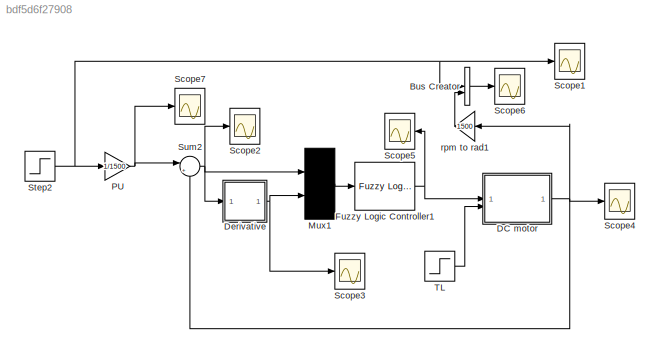
MODEL mdl_bdf5d6f27908
KIND model
CONFIG AbsTol = auto
CONFIG EnableMultiTasking = on
CONFIG FixedStep = auto
CONFIG MaxStep = auto
CONFIG MinStep = auto
CONFIG RelTol = 1e-3
CONFIG SampleTimeConstraint = Unconstrained
CONFIG SolverName = ode45
CONFIG StartTime = 0.0
CONFIG StopTime = 10
BLOCK [BusCreator] Bus Creator
  DisplayOption = bar
  InheritFromInputs = on
  Inputs = 2
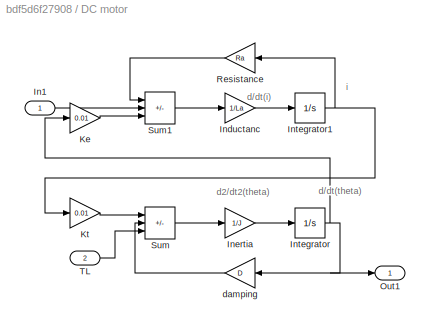
BLOCK [SubSystem] DC motor
BLOCK [Inport] DC motor/In1
BLOCK [Gain] DC motor/Inductanc
  Gain = 1/La
  OutDataTypeStr = Inherit: Same as input
  ParamDataTypeStr = Inherit: Same as input
  SaturateOnIntegerOverflow = on
BLOCK [Gain] DC motor/Inertia
  Gain = 1/J
  OutDataTypeStr = Inherit: Same as input
  ParamDataTypeStr = Inherit: Same as input
  SaturateOnIntegerOverflow = on
BLOCK [Integrator] DC motor/Integrator
BLOCK [Integrator] DC motor/Integrator1
BLOCK [Gain] DC motor/Ke
  Gain = 0.01
  OutDataTypeStr = Inherit: Same as input
  ParamDataTypeStr = Inherit: Same as input
  SaturateOnIntegerOverflow = on
BLOCK [Gain] DC motor/Kt
  Gain = 0.01
  OutDataTypeStr = Inherit: Same as input
  ParamDataTypeStr = Inherit: Same as input
  SaturateOnIntegerOverflow = on
BLOCK [Outport] DC motor/Out1
BLOCK [Gain] DC motor/Resistance
  Gain = Ra
  OutDataTypeStr = Inherit: Same as input
  ParamDataTypeStr = Inherit: Same as input
  SaturateOnIntegerOverflow = on
BLOCK [Sum] DC motor/Sum
  IconShape = rectangular
  InputSameDT = on
  Inputs = +--
  OutDataTypeStr = Inherit: Same as first input
  SaturateOnIntegerOverflow = on
BLOCK [Sum] DC motor/Sum1
  IconShape = rectangular
  InputSameDT = on
  Inputs = -+-
  OutDataTypeStr = Inherit: Same as first input
  SaturateOnIntegerOverflow = on
BLOCK [Inport] DC motor/TL
  Port = 2
BLOCK [Gain] DC motor/damping
  Gain = D
  OutDataTypeStr = Inherit: Same as input
  ParamDataTypeStr = Inherit: Same as input
  SaturateOnIntegerOverflow = on
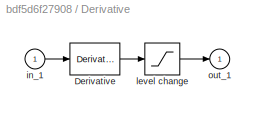
BLOCK [SubSystem] Derivative
  ShowPortLabels = none
BLOCK [Derivative] Derivative/Derivative
BLOCK [Inport] Derivative/in_1
BLOCK [Saturate] Derivative/level change
  LowerLimit = -2
  UpperLimit = 2
BLOCK [Outport] Derivative/out_1
BLOCK [Reference] Fuzzy Logic Controller1  REF=fuzblock/Fuzzy Logic   (lib defined in mdl_858b3b3e7478)
Controller
  SourceBlock = fuzblock/Fuzzy Logic \nController
  SourceType = Fuzzy Inference System
BLOCK [Mux] Mux1
  Inputs = 2
BLOCK [Gain] PU
  Gain = 1/1500
  NameLocation = top
BLOCK [Scope] Scope1
  Floating = off
  NumInputPorts = 1
  ScopeSpecificationString = C++SS(StrPVP('Location','[5, 86, 1285, 757]'),StrPVP('Open','off'),MxPVP('AxesTitles',54,'struct(''axes1'',''%<SignalLabel>'')'),StrPVP('YMin','0'),StrPVP('YMax','1750'),StrPVP('DataFormat','StructureWithTime'),StrPVP('LimitDataPoints','off'),StrPVP('BlockParamSampleTime','0'),StrPVP('Decimation','1'),StrPVP('BlockParamSampleInput','off'))
BLOCK [Scope] Scope2
  Floating = off
  NumInputPorts = 1
  ScopeSpecificationString = C++SS(StrPVP('Location','[5, 86, 1285, 757]'),StrPVP('Open','off'),MxPVP('AxesTitles',54,'struct(''axes1'',''%<SignalLabel>'')'),StrPVP('YMin','0'),StrPVP('YMax','1750'),StrPVP('SaveName','ScopeData1'),StrPVP('DataFormat','StructureWithTime'),StrPVP('LimitDataPoints','off'),StrPVP('BlockParamSampleTime','0'),StrPVP('Decimation','1'),StrPVP('BlockParamSampleInput','off'))
BLOCK [Scope] Scope3
  Floating = off
  NumInputPorts = 1
  ScopeSpecificationString = C++SS(StrPVP('Location','[5, 86, 1285, 757]'),StrPVP('Open','off'),MxPVP('AxesTitles',54,'struct(''axes1'',''%<SignalLabel>'')'),StrPVP('YMin','0'),StrPVP('YMax','1750'),StrPVP('SaveName','ScopeData2'),StrPVP('DataFormat','StructureWithTime'),StrPVP('LimitDataPoints','off'),StrPVP('BlockParamSampleTime','0'),StrPVP('Decimation','1'),StrPVP('BlockParamSampleInput','off'))
BLOCK [Scope] Scope4
  Floating = off
  NumInputPorts = 1
  ScopeSpecificationString = C++SS(StrPVP('Location','[5, 86, 1285, 757]'),StrPVP('Open','off'),MxPVP('AxesTitles',54,'struct(''axes1'',''%<SignalLabel>'')'),StrPVP('YMin','0'),StrPVP('YMax','1750'),StrPVP('SaveName','ScopeData3'),StrPVP('DataFormat','StructureWithTime'),StrPVP('LimitDataPoints','off'),StrPVP('BlockParamSampleTime','0'),StrPVP('Decimation','1'),StrPVP('BlockParamSampleInput','off'))
BLOCK [Scope] Scope5
  Floating = off
  NameLocation = top
  NumInputPorts = 1
  ScopeSpecificationString = C++SS(StrPVP('Location','[5, 43, 1285, 714]'),StrPVP('Open','off'),MxPVP('AxesTitles',54,'struct(''axes1'',''%<SignalLabel>'')'),StrPVP('YMin','0'),StrPVP('YMax','1750'),StrPVP('SaveName','ScopeData4'),StrPVP('DataFormat','StructureWithTime'),StrPVP('LimitDataPoints','off'),StrPVP('BlockParamSampleTime','0'),StrPVP('Decimation','1'),StrPVP('BlockParamSampleInput','off'))
BLOCK [Scope] Scope6
  Floating = off
  NumInputPorts = 1
  ScopeSpecificationString = Simulink.scopes.TimeScopeBlockCfg('CurrentConfiguration', extmgr.ConfigurationSet(extmgr.Configuration('Core','General UI',true),extmgr.Configuration('Core','Source UI',true),extmgr.Configuration('Sources','WiredSimulink',true,'DataLoggingVariableName','ScopeData5','DataLoggingSaveFormat','StructureWithTime','DataLoggingDecimation','1','DataLoggingDecimateData',true),extmgr.Configuration('Visuals'...<+1662ch>
BLOCK [Scope] Scope7
  Floating = off
  NumInputPorts = 1
  ScopeSpecificationString = C++SS(StrPVP('Location','[5, 86, 1285, 757]'),StrPVP('Open','off'),MxPVP('AxesTitles',54,'struct(''axes1'',''%<SignalLabel>'')'),StrPVP('YMin','0'),StrPVP('YMax','1750'),StrPVP('SaveName','ScopeData6'),StrPVP('DataFormat','StructureWithTime'),StrPVP('LimitDataPoints','off'),StrPVP('BlockParamSampleTime','0'),StrPVP('Decimation','1'),StrPVP('BlockParamSampleInput','off'))
BLOCK [Step] Step2
  After = 1450
  Before = 800
  SampleTime = 0.0001
  Time = 5
BLOCK [Sum] Sum2
  Inputs = |+-
BLOCK [Step] TL
  After = 0.002
  Before = 0.0001
  SampleTime = 0
  Time = 7
BLOCK [Gain] rpm to rad1
  Gain = 1500
ANNOTATION DC motor: d/dt(i)
ANNOTATION DC motor: d/dt(theta)
ANNOTATION DC motor: d2/dt2(theta)
ANNOTATION DC motor: i
LINE Bus Creator:1 -> Scope6:1
LINE DC motor/In1:1 -> DC motor/Sum1:2
LINE DC motor/Inductanc:1 -> DC motor/Integrator1:1
LINE DC motor/Inertia:1 -> DC motor/Integrator:1
NET DC motor/Integrator1:1 -> DC motor/Kt:1, DC motor/Resistance:1
NET DC motor/Integrator:1 -> DC motor/Ke:1, DC motor/Out1:1, DC motor/damping:1
LINE DC motor/Ke:1 -> DC motor/Sum1:3
LINE DC motor/Kt:1 -> DC motor/Sum:1
LINE DC motor/Resistance:1 -> DC motor/Sum1:1
LINE DC motor/Sum1:1 -> DC motor/Inductanc:1
LINE DC motor/Sum:1 -> DC motor/Inertia:1
LINE DC motor/TL:1 -> DC motor/Sum:3
LINE DC motor/damping:1 -> DC motor/Sum:2
NET DC motor:1 -> Scope4:1, Sum2:2, rpm to rad1:1
LINE Derivative/Derivative:1 -> Derivative/level change:1
LINE Derivative/in_1:1 -> Derivative/Derivative:1
LINE Derivative/level change:1 -> Derivative/out_1:1
NET Derivative:1 -> Mux1:2, Scope3:1
NET Fuzzy Logic Controller1:1 -> DC motor:1, Scope5:1
LINE Mux1:1 -> Fuzzy Logic Controller1:1
NET PU:1 -> Scope7:1, Sum2:1
NET Step2:1 -> Bus Creator:1, PU:1, Scope1:1
NET Sum2:1 -> Derivative:1, Mux1:1, Scope2:1
LINE TL:1 -> DC motor:2
LINE rpm to rad1:1 -> Bus Creator:2
note: NET lines group one-source signal fan-out (src -> all destinations, sorted); 1:1 wires keep LINE
